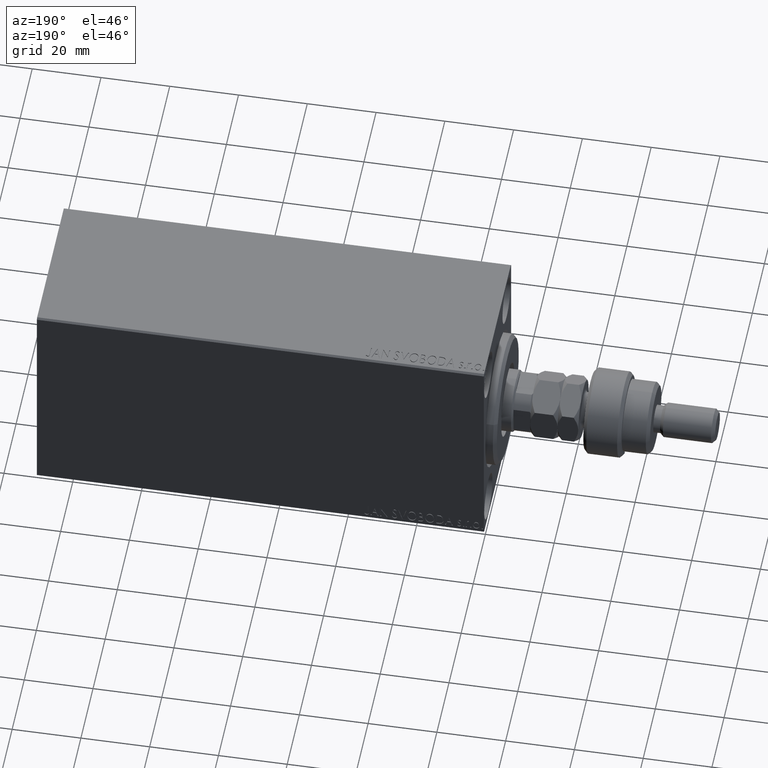
[diagram: clean part render]
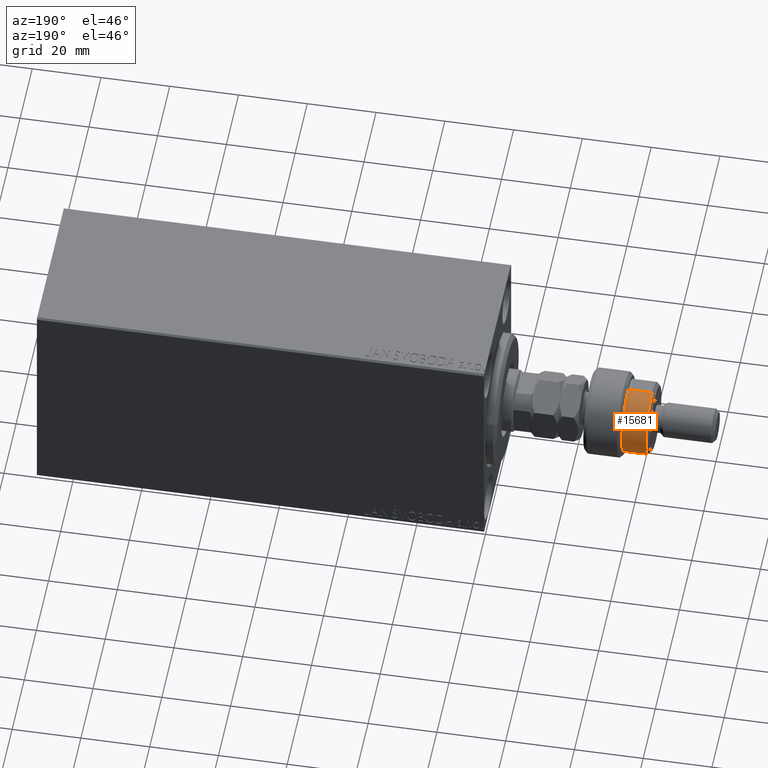
[diagram: same view with one face highlighted and labeled with its STEP entity id]
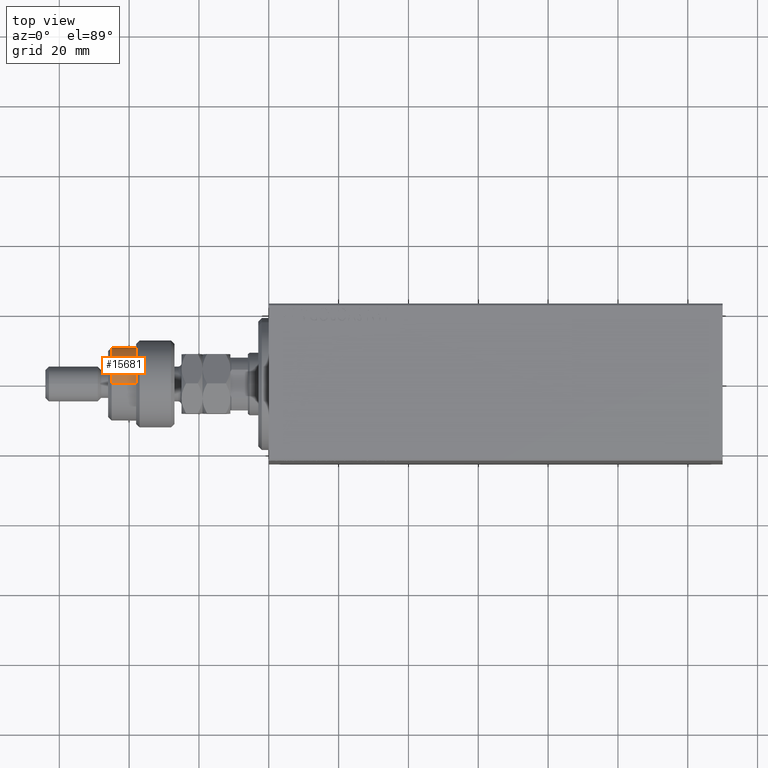
[diagram: same view with one face highlighted and labeled with its STEP entity id]
A machine part, auxiliary view. The second image highlights one B-rep face of the part: STEP entity #15681.
A second angle (top view) of the same face is appended — the face is thin or edge-on in the first view.
In plain terms, the highlighted cylindrical surface (partial cylindrical patch) has radius 10.5 mm, axis along (1, -0, -0).
Its self-contained STEP definition (entity closure, byte-faithful):
#1165 = VECTOR ( 'NONE', #43323, 1000.000000000000000 ) ;
#1985 = EDGE_CURVE ( 'NONE', #13457, #13442, #26989, .T. ) ;
#3008 = CARTESIAN_POINT ( 'NONE',  ( 10.50000000000000000, 1.285879139104720831E-15, 17.99999999999999645 ) ) ;
#3818 = CARTESIAN_POINT ( 'NONE',  ( -8.944271909999159220, 5.500000000000000000, 12.50000000000000000 ) ) ;
#4999 = CARTESIAN_POINT ( 'NONE',  ( 10.50000000000000000, 1.285879139104720831E-15, 11.00000000000000000 ) ) ;
#5337 = ORIENTED_EDGE ( 'NONE', *, *, #36507, .T. ) ;
#6017 = CARTESIAN_POINT ( 'NONE',  ( -10.50000000000000000, 0.000000000000000000, 17.99999999999999645 ) ) ;
#7198 = VECTOR ( 'NONE', #27455, 1000.000000000000000 ) ;
#9473 = DIRECTION ( 'NONE',  ( 0.000000000000000000, 0.000000000000000000, -1.000000000000000000 ) ) ;
#10733 = AXIS2_PLACEMENT_3D ( 'NONE', #33106, #29565, #26043 ) ;
#10932 = AXIS2_PLACEMENT_3D ( 'NONE', #27389, #9473, #41753 ) ;
#13021 = AXIS2_PLACEMENT_3D ( 'NONE', #32887, #42813, #29128 ) ;
#13442 = VERTEX_POINT ( 'NONE', #3818 ) ;
#13457 = VERTEX_POINT ( 'NONE', #32553 ) ;
#14697 = VERTEX_POINT ( 'NONE', #23048 ) ;
#15681 = ADVANCED_FACE ( 'NONE', ( #39502 ), #18080, .T. ) ;
#15952 = LINE ( 'NONE', #23240, #32431 ) ;
#16182 = EDGE_LOOP ( 'NONE', ( #5337, #16881, #40167, #32799, #30762, #35464 ) ) ;
#16268 = DIRECTION ( 'NONE',  ( 0.000000000000000000, 0.000000000000000000, 1.000000000000000000 ) ) ;
#16881 = ORIENTED_EDGE ( 'NONE', *, *, #42597, .T. ) ;
#17864 = CARTESIAN_POINT ( 'NONE',  ( 0.000000000000000000, 0.000000000000000000, 11.00000000000000000 ) ) ;
#18080 = CYLINDRICAL_SURFACE ( 'NONE', #13021, 10.50000000000000000 ) ;
#18652 = VERTEX_POINT ( 'NONE', #4999 ) ;
#20295 = CIRCLE ( 'NONE', #28565, 10.50000000000000000 ) ;
#21904 = LINE ( 'NONE', #28953, #1165 ) ;
#23048 = CARTESIAN_POINT ( 'NONE',  ( -10.50000000000000000, 0.000000000000000000, 12.50000000000000000 ) ) ;
#23240 = CARTESIAN_POINT ( 'NONE',  ( 10.50000000000000000, 1.285879139104720831E-15, 19.00000000000000000 ) ) ;
#25234 = CIRCLE ( 'NONE', #10932, 10.50000000000000000 ) ;
#25849 = EDGE_CURVE ( 'NONE', #18652, #13457, #20295, .T. ) ;
#26043 = DIRECTION ( 'NONE',  ( -1.000000000000000000, 0.000000000000000000, 0.000000000000000000 ) ) ;
#26190 = VERTEX_POINT ( 'NONE', #6017 ) ;
#26989 = LINE ( 'NONE', #34749, #7198 ) ;
#27389 = CARTESIAN_POINT ( 'NONE',  ( 0.000000000000000000, 0.000000000000000000, 17.99999999999999645 ) ) ;
#27455 = DIRECTION ( 'NONE',  ( 0.000000000000000000, 0.000000000000000000, 1.000000000000000000 ) ) ;
#28565 = AXIS2_PLACEMENT_3D ( 'NONE', #17864, #16268, #41480 ) ;
#28953 = CARTESIAN_POINT ( 'NONE',  ( -10.50000000000000000, 0.000000000000000000, 19.00000000000000000 ) ) ;
#29128 = DIRECTION ( 'NONE',  ( -1.000000000000000000, 0.000000000000000000, 0.000000000000000000 ) ) ;
#29565 = DIRECTION ( 'NONE',  ( 0.000000000000000000, 0.000000000000000000, -1.000000000000000000 ) ) ;
#30762 = ORIENTED_EDGE ( 'NONE', *, *, #46315, .F. ) ;
#31046 = CIRCLE ( 'NONE', #10733, 10.50000000000000000 ) ;
#32431 = VECTOR ( 'NONE', #33605, 1000.000000000000000 ) ;
#32553 = CARTESIAN_POINT ( 'NONE',  ( -8.944271909999159220, 5.500000000000000000, 11.00000000000000000 ) ) ;
#32799 = ORIENTED_EDGE ( 'NONE', *, *, #1985, .T. ) ;
#32887 = CARTESIAN_POINT ( 'NONE',  ( 0.000000000000000000, 0.000000000000000000, 19.00000000000000000 ) ) ;
#33106 = CARTESIAN_POINT ( 'NONE',  ( 0.000000000000000000, 0.000000000000000000, 12.50000000000000000 ) ) ;
#33605 = DIRECTION ( 'NONE',  ( -0.000000000000000000, -0.000000000000000000, -1.000000000000000000 ) ) ;
#34749 = CARTESIAN_POINT ( 'NONE',  ( -8.944271909999159220, 5.500000000000000000, 19.00000000000000000 ) ) ;
#35464 = ORIENTED_EDGE ( 'NONE', *, *, #36920, .F. ) ;
#36507 = EDGE_CURVE ( 'NONE', #26190, #38392, #25234, .T. ) ;
#36920 = EDGE_CURVE ( 'NONE', #26190, #14697, #21904, .T. ) ;
#38392 = VERTEX_POINT ( 'NONE', #3008 ) ;
#39502 = FACE_OUTER_BOUND ( 'NONE', #16182, .T. ) ;
#40167 = ORIENTED_EDGE ( 'NONE', *, *, #25849, .T. ) ;
#41480 = DIRECTION ( 'NONE',  ( 1.000000000000000000, 0.000000000000000000, 0.000000000000000000 ) ) ;
#41753 = DIRECTION ( 'NONE',  ( 1.000000000000000000, 0.000000000000000000, 0.000000000000000000 ) ) ;
#42597 = EDGE_CURVE ( 'NONE', #38392, #18652, #15952, .T. ) ;
#42813 = DIRECTION ( 'NONE',  ( -0.000000000000000000, -0.000000000000000000, -1.000000000000000000 ) ) ;
#43323 = DIRECTION ( 'NONE',  ( -0.000000000000000000, -0.000000000000000000, -1.000000000000000000 ) ) ;
#46315 = EDGE_CURVE ( 'NONE', #14697, #13442, #31046, .T. ) ;